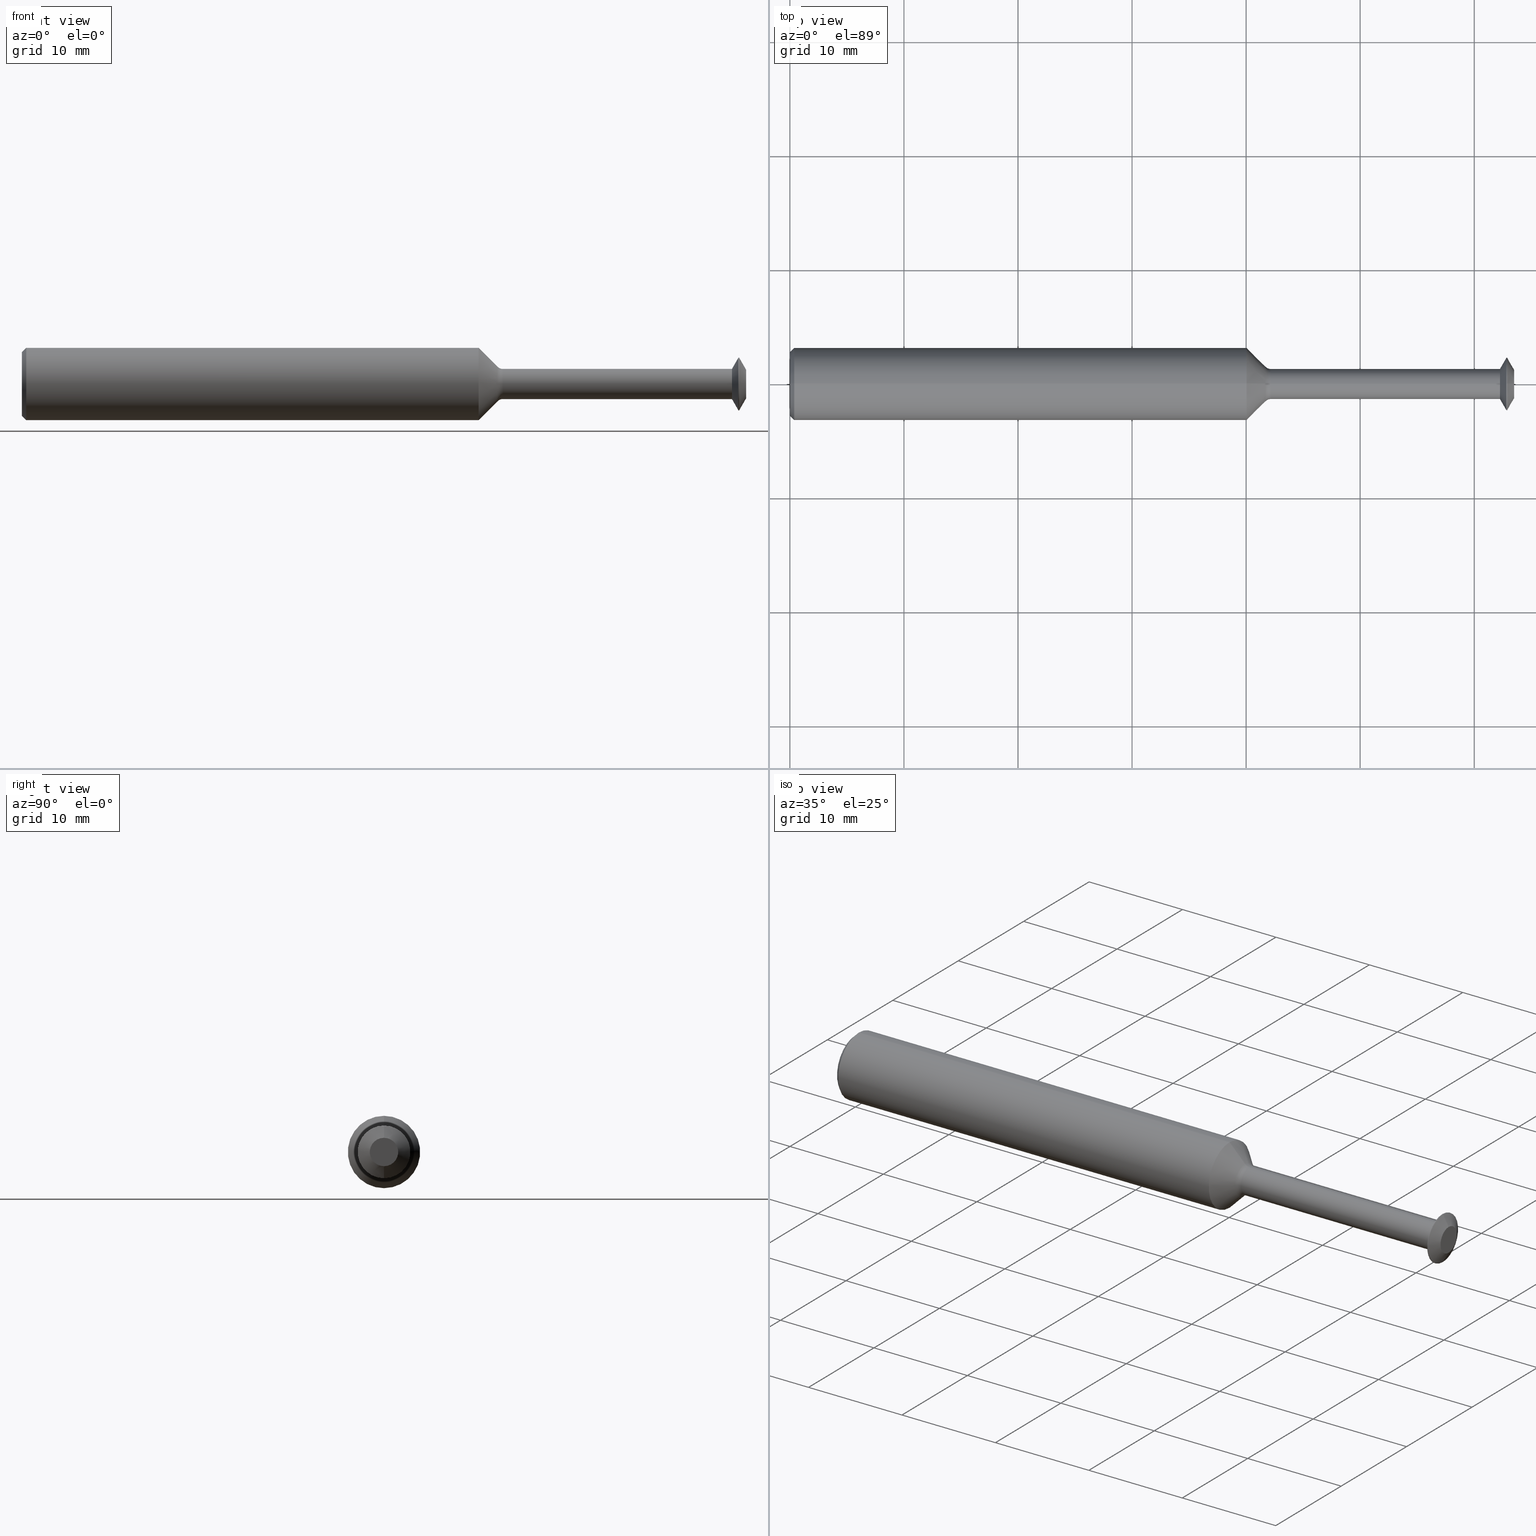
[diagram: canonical four-view strip — front | top / right | iso, engineering-drawing reading convention]
A machine part, canonical four-view strip (front | top / right | iso — engineering-drawing reading convention). The complete STEP part file that produces these views, byte-faithful:
ISO-10303-21;
HEADER;
FILE_DESCRIPTION (( 'STEP AP214' ),
    '1' );
FILE_NAME ('SPTM182XL.STEP',
    '2019-05-03T19:03:41',
    ( '' ),
    ( '' ),
    'SwSTEP 2.0',
    'SolidWorks 2018',
    '' );
FILE_SCHEMA (( 'AUTOMOTIVE_DESIGN' ));
ENDSEC;

DATA;
#1 = DIMENSIONAL_EXPONENTS ( 1.000000000000000000, 0.0000000000000000000, 0.0000000000000000000, 0.0000000000000000000, 0.0000000000000000000, 0.0000000000000000000, 0.0000000000000000000 ) ;
#2 = DIRECTION ( 'NONE',  ( 0.0000000000000000000, 0.0000000000000000000, 1.000000000000000000 ) ) ;
#3 = ORIENTED_EDGE ( 'NONE', *, *, #274, .T. ) ;
#4 = CIRCLE ( 'NONE', #393, 0.1248500000000000026 ) ;
#5 = TOROIDAL_SURFACE ( 'NONE', #399, 0.07699999999999998512, 0.02499999999999983485 ) ;
#6 = DIRECTION ( 'NONE',  ( -1.000000000000000000, -0.0000000000000000000, -0.0000000000000000000 ) ) ;
#7 = EDGE_CURVE ( 'NONE', #306, #409, #110, .T. ) ;
#8 = ORIENTED_EDGE ( 'NONE', *, *, #448, .F. ) ;
#9 = CARTESIAN_POINT ( 'NONE',  ( 0.0000000000000000000, 0.0000000000000000000, 0.0000000000000000000 ) ) ;
#10 = ADVANCED_FACE ( 'NONE', ( #263 ), #184, .T. ) ;
#11 = CARTESIAN_POINT ( 'NONE',  ( 1.660003014481508332, 6.368163355566256473E-18, -0.05200000000000015721 ) ) ;
#12 = ORIENTED_EDGE ( 'NONE', *, *, #367, .T. ) ;
#13 = EDGE_LOOP ( 'NONE', ( #145, #32, #345, #467 ) ) ;
#14 = CARTESIAN_POINT ( 'NONE',  ( 1.642325344951844901, 7.264890212845911207E-18, -0.05932233047033651924 ) ) ;
#15 = CIRCLE ( 'NONE', #349, 0.05200000000000015721 ) ;
#16 = ORIENTED_EDGE ( 'NONE', *, *, #322, .T. ) ;
#17 = DIRECTION ( 'NONE',  ( 0.7071067811865514585, 0.0000000000000000000, -0.7071067811865435759 ) ) ;
#18 =( LENGTH_UNIT ( ) NAMED_UNIT ( * ) SI_UNIT ( $, .METRE. ) );
#19 = SURFACE_STYLE_FILL_AREA ( #112 ) ;
#20 = DIRECTION ( 'NONE',  ( -1.000000000000000000, -0.0000000000000000000, -0.0000000000000000000 ) ) ;
#21 = DIRECTION ( 'NONE',  ( -1.000000000000000000, -0.0000000000000000000, -0.0000000000000000000 ) ) ;
#22 = CARTESIAN_POINT ( 'NONE',  ( 2.500000000000000000, 0.0000000000000000000, 0.04899999999999953004 ) ) ;
#23 = ORIENTED_EDGE ( 'NONE', *, *, #375, .T. ) ;
#24 = CARTESIAN_POINT ( 'NONE',  ( 2.500000000000000000, 8.572527594031414950E-18, -0.04899999999999953004 ) ) ;
#25 = CIRCLE ( 'NONE', #489, 0.1248500000000000026 ) ;
#26 = DIRECTION ( 'NONE',  ( -1.000000000000000000, -0.0000000000000000000, -0.0000000000000000000 ) ) ;
#27 = CIRCLE ( 'NONE', #116, 0.05200000000000000455 ) ;
#28 = ORIENTED_EDGE ( 'NONE', *, *, #475, .T. ) ;
#29 = LINE ( 'NONE', #451, #437 ) ;
#30 = CARTESIAN_POINT ( 'NONE',  ( 0.0000000000000000000, 0.0000000000000000000, 0.0000000000000000000 ) ) ;
#31 = DIRECTION ( 'NONE',  ( 0.0000000000000000000, 0.0000000000000000000, 1.000000000000000000 ) ) ;
#32 = ORIENTED_EDGE ( 'NONE', *, *, #370, .T. ) ;
#33 = LENGTH_MEASURE_WITH_UNIT ( LENGTH_MEASURE( 0.02539999999999999897 ), #365 );
#34 = FACE_OUTER_BOUND ( 'NONE', #68, .T. ) ;
#35 = AXIS2_PLACEMENT_3D ( 'NONE', #358, #195, #371 ) ;
#36 = VECTOR ( 'NONE', #207, 39.37007874015748143 ) ;
#37 = VERTEX_POINT ( 'NONE', #400 ) ;
#38 = CARTESIAN_POINT ( 'NONE',  ( 2.473397675422181141, 1.114428587224085715E-17, -0.09099999999999953959 ) ) ;
#39 = ORIENTED_EDGE ( 'NONE', *, *, #343, .T. ) ;
#40 = DIMENSIONAL_EXPONENTS ( 1.000000000000000000, 0.0000000000000000000, 0.0000000000000000000, 0.0000000000000000000, 0.0000000000000000000, 0.0000000000000000000, 0.0000000000000000000 ) ;
#41 = VERTEX_POINT ( 'NONE', #324 ) ;
#42 = ORIENTED_EDGE ( 'NONE', *, *, #456, .F. ) ;
#43 = CARTESIAN_POINT ( 'NONE',  ( 1.660003014481508332, 0.0000000000000000000, 0.0000000000000000000 ) ) ;
#44 = ADVANCED_FACE ( 'NONE', ( #74 ), #197, .T. ) ;
#45 = DIRECTION ( 'NONE',  ( -0.4977310399126123608, 1.062174661273176127E-16, -0.8673314314075728504 ) ) ;
#46 = EDGE_LOOP ( 'NONE', ( #84, #351, #98, #23 ) ) ;
#47 = VERTEX_POINT ( 'NONE', #483 ) ;
#48 = CARTESIAN_POINT ( 'NONE',  ( 1.660003014481508332, 0.0000000000000000000, 0.07699999999999998512 ) ) ;
#49 = EDGE_LOOP ( 'NONE', ( #132, #455, #179, #275 ) ) ;
#50 = DIRECTION ( 'NONE',  ( -0.7071067811865482389, 8.659560562354925463E-17, -0.7071067811865469066 ) ) ;
#51 = CARTESIAN_POINT ( 'NONE',  ( 0.0000000000000000000, 0.0000000000000000000, 0.0000000000000000000 ) ) ;
#52 = PRODUCT_RELATED_PRODUCT_CATEGORY ( 'part', '', ( #154 ) ) ;
#53 = TOROIDAL_SURFACE ( 'NONE', #78, 0.07699999999999998512, 0.02499999999999983485 ) ;
#54 = CARTESIAN_POINT ( 'NONE',  ( 1.642325344951844901, 7.264890212845898881E-18, -0.05932233047033641515 ) ) ;
#55 = ORIENTED_EDGE ( 'NONE', *, *, #95, .T. ) ;
#56 = CARTESIAN_POINT ( 'NONE',  ( 1.660003014481508332, 0.0000000000000000000, 0.0000000000000000000 ) ) ;
#57 = EDGE_LOOP ( 'NONE', ( #55, #283, #439, #261 ) ) ;
#58 = ORIENTED_EDGE ( 'NONE', *, *, #217, .T. ) ;
#59 = EDGE_LOOP ( 'NONE', ( #198, #383 ) ) ;
#60 = DIRECTION ( 'NONE',  ( -1.000000000000000000, -0.0000000000000000000, -0.0000000000000000000 ) ) ;
#61 =( GEOMETRIC_REPRESENTATION_CONTEXT ( 3 ) GLOBAL_UNCERTAINTY_ASSIGNED_CONTEXT ( ( #182 ) ) GLOBAL_UNIT_ASSIGNED_CONTEXT ( ( #298, #254, #79 ) ) REPRESENTATION_CONTEXT ( 'NONE', 'WORKASPACE' ) );
#62 = DIRECTION ( 'NONE',  ( 0.0000000000000000000, 0.0000000000000000000, 1.000000000000000000 ) ) ;
#63 = FILL_AREA_STYLE_COLOUR ( '', #175 ) ;
#64 = ADVANCED_FACE ( 'NONE', ( #299 ), #499, .T. ) ;
#65 = VERTEX_POINT ( 'NONE', #490 ) ;
#66 = AXIS2_PLACEMENT_3D ( 'NONE', #30, #425, #267 ) ;
#67 = FACE_OUTER_BOUND ( 'NONE', #59, .T. ) ;
#68 = EDGE_LOOP ( 'NONE', ( #191, #73, #491, #39 ) ) ;
#69 = ORIENTED_EDGE ( 'NONE', *, *, #362, .F. ) ;
#70 = VECTOR ( 'NONE', #266, 39.37007874015748143 ) ;
#71 = CARTESIAN_POINT ( 'NONE',  ( 0.0000000000000000000, 1.437123018799418210E-17, 0.1098499999999999199 ) ) ;
#72 = VECTOR ( 'NONE', #118, 39.37007874015748143 ) ;
#73 = ORIENTED_EDGE ( 'NONE', *, *, #466, .F. ) ;
#74 = FACE_OUTER_BOUND ( 'NONE', #332, .T. ) ;
#75 = ORIENTED_EDGE ( 'NONE', *, *, #107, .T. ) ;
#76 = SURFACE_STYLE_FILL_AREA ( #386 ) ;
#77 = CARTESIAN_POINT ( 'NONE',  ( 2.500000000000000000, 0.0000000000000000000, 0.04899999999999953004 ) ) ;
#78 = AXIS2_PLACEMENT_3D ( 'NONE', #56, #340, #211 ) ;
#79 =( NAMED_UNIT ( * ) SI_UNIT ( $, .STERADIAN. ) SOLID_ANGLE_UNIT ( ) );
#80 = FILL_AREA_STYLE_COLOUR ( '', #222 ) ;
#81 = DIRECTION ( 'NONE',  ( -1.000000000000000000, -0.0000000000000000000, -0.0000000000000000000 ) ) ;
#82 = MECHANICAL_DESIGN_GEOMETRIC_PRESENTATION_REPRESENTATION (  '', ( #159 ), #61 ) ;
#83 = CARTESIAN_POINT ( 'NONE',  ( 1.576797675422181300, 0.0000000000000000000, 0.0000000000000000000 ) ) ;
#84 = ORIENTED_EDGE ( 'NONE', *, *, #370, .F. ) ;
#85 = CARTESIAN_POINT ( 'NONE',  ( 0.0000000000000000000, 0.0000000000000000000, 0.0000000000000000000 ) ) ;
#86 = ORIENTED_EDGE ( 'NONE', *, *, #274, .F. ) ;
#87 = DIRECTION ( 'NONE',  ( -1.000000000000000000, -0.0000000000000000000, -0.0000000000000000000 ) ) ;
#88 = CIRCLE ( 'NONE', #189, 0.1098499999999999199 ) ;
#89 = DIRECTION ( 'NONE',  ( 0.0000000000000000000, 0.0000000000000000000, 1.000000000000000000 ) ) ;
#90 = PRESENTATION_STYLE_ASSIGNMENT (( #407 ) ) ;
#91 = CARTESIAN_POINT ( 'NONE',  ( 0.0000000000000000000, 0.0000000000000000000, 0.0000000000000000000 ) ) ;
#92 = AXIS2_PLACEMENT_3D ( 'NONE', #249, #311, #313 ) ;
#93 = DIRECTION ( 'NONE',  ( 0.0000000000000000000, 0.0000000000000000000, 1.000000000000000000 ) ) ;
#94 = CARTESIAN_POINT ( 'NONE',  ( 2.451016945457063834, 0.0000000000000000000, 0.0000000000000000000 ) ) ;
#95 = EDGE_CURVE ( 'NONE', #390, #404, #458, .T. ) ;
#96 = VERTEX_POINT ( 'NONE', #54 ) ;
#97 = VECTOR ( 'NONE', #310, 39.37007874015748854 ) ;
#98 = ORIENTED_EDGE ( 'NONE', *, *, #473, .T. ) ;
#99 = DIRECTION ( 'NONE',  ( -1.000000000000000000, -0.0000000000000000000, -0.0000000000000000000 ) ) ;
#100 = LINE ( 'NONE', #229, #72 ) ;
#101 = CARTESIAN_POINT ( 'NONE',  ( 1.660003014481508332, 9.429780353434618845E-18, -0.07699999999999998512 ) ) ;
#102 = AXIS2_PLACEMENT_3D ( 'NONE', #109, #87, #139 ) ;
#103 = VECTOR ( 'NONE', #170, 39.37007874015748143 ) ;
#104 = DIRECTION ( 'NONE',  ( 0.0000000000000000000, 0.0000000000000000000, 1.000000000000000000 ) ) ;
#105 = CIRCLE ( 'NONE', #155, 0.05200000000000015721 ) ;
#106 = LINE ( 'NONE', #302, #344 ) ;
#107 = EDGE_CURVE ( 'NONE', #476, #409, #224, .T. ) ;
#108 = LINE ( 'NONE', #269, #70 ) ;
#109 = CARTESIAN_POINT ( 'NONE',  ( 0.0000000000000000000, 0.0000000000000000000, 0.0000000000000000000 ) ) ;
#110 = LINE ( 'NONE', #487, #103 ) ;
#111 = FACE_OUTER_BOUND ( 'NONE', #328, .T. ) ;
#112 = FILL_AREA_STYLE ('',( #80 ) ) ;
#113 = ADVANCED_FACE ( 'NONE', ( #34 ), #5, .F. ) ;
#114 = EDGE_CURVE ( 'NONE', #243, #476, #29, .T. ) ;
#115 = DIRECTION ( 'NONE',  ( 0.0000000000000000000, 0.0000000000000000000, 1.000000000000000000 ) ) ;
#116 = AXIS2_PLACEMENT_3D ( 'NONE', #94, #99, #104 ) ;
#117 = CARTESIAN_POINT ( 'NONE',  ( 1.642325344951844901, 0.0000000000000000000, 0.05932233047033641515 ) ) ;
#118 = DIRECTION ( 'NONE',  ( -1.000000000000000000, -0.0000000000000000000, -0.0000000000000000000 ) ) ;
#119 = CARTESIAN_POINT ( 'NONE',  ( 0.0000000000000000000, 0.0000000000000000000, -0.1098499999999999199 ) ) ;
#120 = DIRECTION ( 'NONE',  ( 0.0000000000000000000, 0.0000000000000000000, 1.000000000000000000 ) ) ;
#121 = ADVANCED_FACE ( 'NONE', ( #238 ), #282, .T. ) ;
#122 = DIRECTION ( 'NONE',  ( -1.000000000000000000, -0.0000000000000000000, -0.0000000000000000000 ) ) ;
#123 = ORIENTED_EDGE ( 'NONE', *, *, #7, .T. ) ;
#124 = CARTESIAN_POINT ( 'NONE',  ( 0.0000000000000000000, 0.0000000000000000000, 0.0000000000000000000 ) ) ;
#125 = DIRECTION ( 'NONE',  ( -1.000000000000000000, -0.0000000000000000000, -0.0000000000000000000 ) ) ;
#126 = FACE_OUTER_BOUND ( 'NONE', #57, .T. ) ;
#127 = DIRECTION ( 'NONE',  ( -1.000000000000000000, -0.0000000000000000000, -0.0000000000000000000 ) ) ;
#128 = EDGE_LOOP ( 'NONE', ( #401, #86 ) ) ;
#129 = ORIENTED_EDGE ( 'NONE', *, *, #343, .F. ) ;
#130 = CONICAL_SURFACE ( 'NONE', #158, 0.1098499999999999199, 0.7853981633974426169 ) ;
#131 = DIRECTION ( 'NONE',  ( -1.000000000000000000, -0.0000000000000000000, -0.0000000000000000000 ) ) ;
#132 = ORIENTED_EDGE ( 'NONE', *, *, #443, .F. ) ;
#133 = VECTOR ( 'NONE', #482, 39.37007874015748143 ) ;
#134 = EDGE_LOOP ( 'NONE', ( #415, #28, #75, #245 ) ) ;
#135 = AXIS2_PLACEMENT_3D ( 'NONE', #281, #284, #286 ) ;
#136 = EDGE_CURVE ( 'NONE', #232, #65, #105, .T. ) ;
#137 = LINE ( 'NONE', #14, #204 ) ;
#138 = DIRECTION ( 'NONE',  ( 0.0000000000000000000, 0.0000000000000000000, -1.000000000000000000 ) ) ;
#139 = DIRECTION ( 'NONE',  ( 0.0000000000000000000, 0.0000000000000000000, 1.000000000000000000 ) ) ;
#140 = AXIS2_PLACEMENT_3D ( 'NONE', #48, #176, #255 ) ;
#141 = FACE_OUTER_BOUND ( 'NONE', #446, .T. ) ;
#142 = CARTESIAN_POINT ( 'NONE',  ( 2.475897675422181088, 0.0000000000000000000, 0.0000000000000000000 ) ) ;
#143 = CARTESIAN_POINT ( 'NONE',  ( 0.01500000000000024925, 0.0000000000000000000, 0.0000000000000000000 ) ) ;
#144 = ORIENTED_EDGE ( 'NONE', *, *, #357, .T. ) ;
#145 = ORIENTED_EDGE ( 'NONE', *, *, #448, .T. ) ;
#146 = PLANE ( 'NONE',  #196 ) ;
#147 = EDGE_CURVE ( 'NONE', #279, #65, #485, .T. ) ;
#148 = LINE ( 'NONE', #119, #428 ) ;
#149 = DIRECTION ( 'NONE',  ( -1.000000000000000000, -0.0000000000000000000, -0.0000000000000000000 ) ) ;
#150 = EDGE_LOOP ( 'NONE', ( #463, #16, #8, #69 ) ) ;
#151 = AXIS2_PLACEMENT_3D ( 'NONE', #178, #160, #321 ) ;
#152 = DIRECTION ( 'NONE',  ( 0.0000000000000000000, 0.0000000000000000000, -1.000000000000000000 ) ) ;
#153 = DIRECTION ( 'NONE',  ( 0.0000000000000000000, 0.0000000000000000000, 1.000000000000000000 ) ) ;
#154 = PRODUCT ( 'SPTM182XL', 'SPTM182XL', '', ( #421 ) ) ;
#155 = AXIS2_PLACEMENT_3D ( 'NONE', #43, #20, #230 ) ;
#156 = ORIENTED_EDGE ( 'NONE', *, *, #107, .F. ) ;
#157 = DIRECTION ( 'NONE',  ( -1.000000000000000000, -0.0000000000000000000, -0.0000000000000000000 ) ) ;
#158 = AXIS2_PLACEMENT_3D ( 'NONE', #319, #334, #314 ) ;
#159 = STYLED_ITEM ( 'NONE', ( #90 ), #329 ) ;
#160 = DIRECTION ( 'NONE',  ( -1.000000000000000000, -0.0000000000000000000, -0.0000000000000000000 ) ) ;
#161 = ORIENTED_EDGE ( 'NONE', *, *, #468, .F. ) ;
#162 = ADVANCED_FACE ( 'NONE', ( #325 ), #470, .T. ) ;
#163 = ORIENTED_EDGE ( 'NONE', *, *, #475, .F. ) ;
#164 = DIRECTION ( 'NONE',  ( 0.7071067811865514585, 8.659560562354882322E-17, 0.7071067811865435759 ) ) ;
#165 = DIRECTION ( 'NONE',  ( -0.0000000000000000000, 1.000000000000000000, 1.224646799147353207E-16 ) ) ;
#166 = CIRCLE ( 'NONE', #187, 0.05200000000000000455 ) ;
#167 = ADVANCED_FACE ( 'NONE', ( #67 ), #146, .F. ) ;
#168 = CONICAL_SURFACE ( 'NONE', #199, 0.05932233047033651924, 0.7853981633974473908 ) ;
#169 = DIRECTION ( 'NONE',  ( 1.000000000000000000, 0.0000000000000000000, 0.0000000000000000000 ) ) ;
#170 = DIRECTION ( 'NONE',  ( -1.000000000000000000, -0.0000000000000000000, -0.0000000000000000000 ) ) ;
#171 = DIRECTION ( 'NONE',  ( 0.0000000000000000000, 0.0000000000000000000, 1.000000000000000000 ) ) ;
#172 = CARTESIAN_POINT ( 'NONE',  ( 2.500000000000000000, 0.04899999999999953004, 0.0000000000000000000 ) ) ;
#173 = ADVANCED_FACE ( 'NONE', ( #111 ), #53, .F. ) ;
#174 = CARTESIAN_POINT ( 'NONE',  ( 2.473397675422181141, 0.0000000000000000000, 0.0000000000000000000 ) ) ;
#175 = COLOUR_RGB ( '',0.7529411764705882248, 0.7529411764705882248, 0.7529411764705882248 ) ;
#176 = DIRECTION ( 'NONE',  ( 0.0000000000000000000, -1.000000000000000000, 0.0000000000000000000 ) ) ;
#177 = CARTESIAN_POINT ( 'NONE',  ( 0.0000000000000000000, 1.345274508863366152E-17, 0.1098499999999999199 ) ) ;
#178 = CARTESIAN_POINT ( 'NONE',  ( 2.500000000000000000, 0.0000000000000000000, 0.0000000000000000000 ) ) ;
#179 = ORIENTED_EDGE ( 'NONE', *, *, #333, .T. ) ;
#180 = CARTESIAN_POINT ( 'NONE',  ( 0.0000000000000000000, 0.0000000000000000000, 0.0000000000000000000 ) ) ;
#181 = AXIS2_PLACEMENT_3D ( 'NONE', #469, #26, #2 ) ;
#182 = UNCERTAINTY_MEASURE_WITH_UNIT (LENGTH_MEASURE( 1.000000000000000082E-05 ), #298, 'distance_accuracy_value', 'NONE');
#183 = DIRECTION ( 'NONE',  ( -1.000000000000000000, -0.0000000000000000000, -0.0000000000000000000 ) ) ;
#184 = CONICAL_SURFACE ( 'NONE', #348, 0.04899999999999953004, 1.049815545074588963 ) ;
#185 = LINE ( 'NONE', #22, #97 ) ;
#186 = DIRECTION ( 'NONE',  ( 0.0000000000000000000, 0.0000000000000000000, -1.000000000000000000 ) ) ;
#187 = AXIS2_PLACEMENT_3D ( 'NONE', #212, #6, #31 ) ;
#188 = UNCERTAINTY_MEASURE_WITH_UNIT (LENGTH_MEASURE( 1.000000000000000082E-05 ), #327, 'distance_accuracy_value', 'NONE');
#189 = AXIS2_PLACEMENT_3D ( 'NONE', #124, #127, #138 ) ;
#190 = PRESENTATION_LAYER_ASSIGNMENT (  '', '', ( #159 ) ) ;
#191 = ORIENTED_EDGE ( 'NONE', *, *, #293, .F. ) ;
#192 = FACE_OUTER_BOUND ( 'NONE', #434, .T. ) ;
#193 = DIRECTION ( 'NONE',  ( 0.0000000000000000000, 0.0000000000000000000, -1.000000000000000000 ) ) ;
#194 = AXIS2_PLACEMENT_3D ( 'NONE', #142, #149, #153 ) ;
#195 = DIRECTION ( 'NONE',  ( 1.000000000000000000, 0.0000000000000000000, 0.0000000000000000000 ) ) ;
#196 = AXIS2_PLACEMENT_3D ( 'NONE', #51, #169, #152 ) ;
#197 = CONICAL_SURFACE ( 'NONE', #317, 0.09099999999999953959, 1.049815545074589851 ) ;
#198 = ORIENTED_EDGE ( 'NONE', *, *, #438, .T. ) ;
#199 = AXIS2_PLACEMENT_3D ( 'NONE', #341, #81, #308 ) ;
#200 = UNCERTAINTY_MEASURE_WITH_UNIT (LENGTH_MEASURE( 1.000000000000000082E-05 ), #405, 'distance_accuracy_value', 'NONE');
#201 = ADVANCED_FACE ( 'NONE', ( #408 ), #381, .T. ) ;
#202 = EDGE_LOOP ( 'NONE', ( #376, #223, #500, #378 ) ) ;
#203 = PRESENTATION_LAYER_ASSIGNMENT (  '', '', ( #338 ) ) ;
#204 = VECTOR ( 'NONE', #50, 39.37007874015748143 ) ;
#205 = DIRECTION ( 'NONE',  ( 1.000000000000000000, 0.0000000000000000000, 0.0000000000000000000 ) ) ;
#206 = ADVANCED_FACE ( 'NONE', ( #141 ), #300, .T. ) ;
#207 = DIRECTION ( 'NONE',  ( -1.000000000000000000, -0.0000000000000000000, -0.0000000000000000000 ) ) ;
#208 = ORIENTED_EDGE ( 'NONE', *, *, #7, .F. ) ;
#209 = CARTESIAN_POINT ( 'NONE',  ( 1.660003014481508332, 0.0000000000000000000, 0.0000000000000000000 ) ) ;
#210 = DIRECTION ( 'NONE',  ( 0.0000000000000000000, 0.0000000000000000000, 1.000000000000000000 ) ) ;
#211 = DIRECTION ( 'NONE',  ( 0.0000000000000000000, 0.0000000000000000000, 1.000000000000000000 ) ) ;
#212 = CARTESIAN_POINT ( 'NONE',  ( 2.451016945457063834, 0.0000000000000000000, 0.0000000000000000000 ) ) ;
#213 = AXIS2_PLACEMENT_3D ( 'NONE', #479, #402, #295 ) ;
#214 = DIRECTION ( 'NONE',  ( 0.0000000000000000000, 0.0000000000000000000, 1.000000000000000000 ) ) ;
#215 = EDGE_LOOP ( 'NONE', ( #363, #3, #296, #471 ) ) ;
#216 = LENGTH_MEASURE_WITH_UNIT ( LENGTH_MEASURE( 0.02539999999999999897 ), #398 );
#217 = EDGE_CURVE ( 'NONE', #96, #279, #270, .T. ) ;
#218 = PLANE ( 'NONE',  #233 ) ;
#219 = CONICAL_SURFACE ( 'NONE', #181, 0.05932233047033651924, 0.7853981633974473908 ) ;
#220 = VERTEX_POINT ( 'NONE', #350 ) ;
#221 = FACE_OUTER_BOUND ( 'NONE', #128, .T. ) ;
#222 = COLOUR_RGB ( '',0.7529411764705882248, 0.7529411764705882248, 0.7529411764705882248 ) ;
#223 = ORIENTED_EDGE ( 'NONE', *, *, #411, .T. ) ;
#224 = CIRCLE ( 'NONE', #385, 0.09099999999999953959 ) ;
#225 = DIRECTION ( 'NONE',  ( 0.0000000000000000000, 0.0000000000000000000, 1.000000000000000000 ) ) ;
#226 = DIRECTION ( 'NONE',  ( -1.000000000000000000, 0.0000000000000000000, -0.0000000000000000000 ) ) ;
#227 = DIRECTION ( 'NONE',  ( -0.0000000000000000000, 0.0000000000000000000, 1.000000000000000000 ) ) ;
#228 = LINE ( 'NONE', #268, #258 ) ;
#229 = CARTESIAN_POINT ( 'NONE',  ( 0.0000000000000000000, 6.368163355566246458E-18, -0.05200000000000008088 ) ) ;
#230 = DIRECTION ( 'NONE',  ( 0.0000000000000000000, 0.0000000000000000000, 1.000000000000000000 ) ) ;
#231 = ORIENTED_EDGE ( 'NONE', *, *, #315, .T. ) ;
#232 = VERTEX_POINT ( 'NONE', #11 ) ;
#233 = AXIS2_PLACEMENT_3D ( 'NONE', #172, #226, #227 ) ;
#234 = ORIENTED_EDGE ( 'NONE', *, *, #460, .T. ) ;
#235 = AXIS2_PLACEMENT_3D ( 'NONE', #272, #331, #89 ) ;
#236 = ORIENTED_EDGE ( 'NONE', *, *, #287, .T. ) ;
#237 = LINE ( 'NONE', #435, #133 ) ;
#238 = FACE_OUTER_BOUND ( 'NONE', #134, .T. ) ;
#239 = CIRCLE ( 'NONE', #213, 0.09099999999999953959 ) ;
#240 = DIRECTION ( 'NONE',  ( -1.000000000000000000, -0.0000000000000000000, -0.0000000000000000000 ) ) ;
#241 = AXIS2_PLACEMENT_3D ( 'NONE', #85, #374, #62 ) ;
#242 = MECHANICAL_DESIGN_GEOMETRIC_PRESENTATION_REPRESENTATION (  '', ( #338 ), #429 ) ;
#243 = VERTEX_POINT ( 'NONE', #251 ) ;
#244 = ADVANCED_FACE ( 'NONE', ( #256 ), #168, .T. ) ;
#245 = ORIENTED_EDGE ( 'NONE', *, *, #357, .F. ) ;
#246 = DIRECTION ( 'NONE',  ( 0.0000000000000000000, 0.0000000000000000000, 1.000000000000000000 ) ) ;
#247 = DIRECTION ( 'NONE',  ( 0.0000000000000000000, -1.224646799147353207E-16, 1.000000000000000000 ) ) ;
#248 = CARTESIAN_POINT ( 'NONE',  ( 0.0000000000000000000, 0.0000000000000000000, 0.0000000000000000000 ) ) ;
#249 = CARTESIAN_POINT ( 'NONE',  ( 2.500000000000000000, 0.0000000000000000000, 0.0000000000000000000 ) ) ;
#250 = CARTESIAN_POINT ( 'NONE',  ( 2.475897675422181088, 1.114428587224085561E-17, -0.09099999999999953959 ) ) ;
#251 = CARTESIAN_POINT ( 'NONE',  ( 2.475897675422181088, 0.0000000000000000000, 0.09099999999999953959 ) ) ;
#252 = CARTESIAN_POINT ( 'NONE',  ( 1.576797675422181300, 0.0000000000000000000, 0.0000000000000000000 ) ) ;
#253 = CARTESIAN_POINT ( 'NONE',  ( 1.576797675422181300, 0.0000000000000000000, 0.1248500000000000026 ) ) ;
#254 =( NAMED_UNIT ( * ) PLANE_ANGLE_UNIT ( ) SI_UNIT ( $, .RADIAN. ) );
#255 = DIRECTION ( 'NONE',  ( 0.0000000000000000000, 0.0000000000000000000, -1.000000000000000000 ) ) ;
#256 = FACE_OUTER_BOUND ( 'NONE', #394, .T. ) ;
#257 = DIRECTION ( 'NONE',  ( -1.000000000000000000, -0.0000000000000000000, -0.0000000000000000000 ) ) ;
#258 = VECTOR ( 'NONE', #294, 39.37007874015748143 ) ;
#259 = DIRECTION ( 'NONE',  ( -1.000000000000000000, -0.0000000000000000000, -0.0000000000000000000 ) ) ;
#260 = ORIENTED_EDGE ( 'NONE', *, *, #443, .T. ) ;
#261 = ORIENTED_EDGE ( 'NONE', *, *, #271, .F. ) ;
#262 = DIRECTION ( 'NONE',  ( 0.0000000000000000000, 0.0000000000000000000, 1.000000000000000000 ) ) ;
#263 = FACE_OUTER_BOUND ( 'NONE', #215, .T. ) ;
#264 = AXIS2_PLACEMENT_3D ( 'NONE', #461, #131, #445 ) ;
#265 = ADVANCED_FACE ( 'NONE', ( #369 ), #219, .T. ) ;
#266 = DIRECTION ( 'NONE',  ( -1.000000000000000000, -0.0000000000000000000, -0.0000000000000000000 ) ) ;
#267 = DIRECTION ( 'NONE',  ( 0.0000000000000000000, 0.0000000000000000000, -1.000000000000000000 ) ) ;
#268 = CARTESIAN_POINT ( 'NONE',  ( 0.0000000000000000000, 0.0000000000000000000, 0.1248500000000000026 ) ) ;
#269 = CARTESIAN_POINT ( 'NONE',  ( 0.0000000000000000000, 0.0000000000000000000, 0.05200000000000008088 ) ) ;
#270 = CIRCLE ( 'NONE', #326, 0.05932233047033651924 ) ;
#271 = EDGE_CURVE ( 'NONE', #390, #243, #185, .T. ) ;
#272 = CARTESIAN_POINT ( 'NONE',  ( 0.0000000000000000000, 0.0000000000000000000, 0.0000000000000000000 ) ) ;
#273 = DIRECTION ( 'NONE',  ( 1.000000000000000000, 0.0000000000000000000, 0.0000000000000000000 ) ) ;
#274 = EDGE_CURVE ( 'NONE', #404, #390, #488, .T. ) ;
#275 = ORIENTED_EDGE ( 'NONE', *, *, #375, .F. ) ;
#276 = CLOSED_SHELL ( 'NONE', ( #162, #64, #265, #173, #433, #121, #206, #477, #447, #10, #304, #44, #291, #113, #244, #201, #167, #481 ) ) ;
#277 = VECTOR ( 'NONE', #164, 39.37007874015748143 ) ;
#278 = CARTESIAN_POINT ( 'NONE',  ( 0.0000000000000000000, 0.0000000000000000000, 0.0000000000000000000 ) ) ;
#279 = VERTEX_POINT ( 'NONE', #117 ) ;
#280 = ORIENTED_EDGE ( 'NONE', *, *, #498, .F. ) ;
#281 = CARTESIAN_POINT ( 'NONE',  ( 1.642325344951844901, 0.0000000000000000000, 0.0000000000000000000 ) ) ;
#282 = CONICAL_SURFACE ( 'NONE', #35, 0.09099999999999953959, 1.049815545074589851 ) ;
#283 = ORIENTED_EDGE ( 'NONE', *, *, #305, .T. ) ;
#284 = DIRECTION ( 'NONE',  ( -1.000000000000000000, -0.0000000000000000000, -0.0000000000000000000 ) ) ;
#285 = CIRCLE ( 'NONE', #135, 0.05932233047033651924 ) ;
#286 = DIRECTION ( 'NONE',  ( 0.0000000000000000000, 0.0000000000000000000, 1.000000000000000000 ) ) ;
#287 = EDGE_CURVE ( 'NONE', #243, #306, #359, .T. ) ;
#288 = PRESENTATION_STYLE_ASSIGNMENT (( #397 ) ) ;
#289 = CARTESIAN_POINT ( 'NONE',  ( 2.473397675422181141, 0.0000000000000000000, 0.0000000000000000000 ) ) ;
#290 = CARTESIAN_POINT ( 'NONE',  ( 2.473397675422181141, 0.0000000000000000000, 0.09099999999999953959 ) ) ;
#291 = ADVANCED_FACE ( 'NONE', ( #459 ), #413, .T. ) ;
#292 = ORIENTED_EDGE ( 'NONE', *, *, #315, .F. ) ;
#293 = EDGE_CURVE ( 'NONE', #96, #232, #410, .T. ) ;
#294 = DIRECTION ( 'NONE',  ( -1.000000000000000000, -0.0000000000000000000, -0.0000000000000000000 ) ) ;
#295 = DIRECTION ( 'NONE',  ( 0.0000000000000000000, 0.0000000000000000000, 1.000000000000000000 ) ) ;
#296 = ORIENTED_EDGE ( 'NONE', *, *, #271, .T. ) ;
#297 = LINE ( 'NONE', #478, #392 ) ;
#298 =( CONVERSION_BASED_UNIT ( 'INCH', #380 ) LENGTH_UNIT ( ) NAMED_UNIT ( #40 ) );
#299 = FACE_OUTER_BOUND ( 'NONE', #13, .T. ) ;
#300 = CYLINDRICAL_SURFACE ( 'NONE', #354, 0.09099999999999953959 ) ;
#301 = EDGE_LOOP ( 'NONE', ( #432, #260, #280, #454 ) ) ;
#302 = CARTESIAN_POINT ( 'NONE',  ( 2.500000000000000000, 6.000769315821972746E-18, -0.04899999999999953004 ) ) ;
#303 = VERTEX_POINT ( 'NONE', #71 ) ;
#304 = ADVANCED_FACE ( 'NONE', ( #192 ), #450, .T. ) ;
#305 = EDGE_CURVE ( 'NONE', #404, #306, #106, .T. ) ;
#306 = VERTEX_POINT ( 'NONE', #250 ) ;
#307 = DIRECTION ( 'NONE',  ( -1.000000000000000000, -0.0000000000000000000, -0.0000000000000000000 ) ) ;
#308 = DIRECTION ( 'NONE',  ( 0.0000000000000000000, 0.0000000000000000000, 1.000000000000000000 ) ) ;
#309 = CARTESIAN_POINT ( 'NONE',  ( 2.473397675422181141, 1.114428587224085715E-17, 0.09099999999999953959 ) ) ;
#310 = DIRECTION ( 'NONE',  ( -0.4977310399126123608, 0.0000000000000000000, 0.8673314314075728504 ) ) ;
#311 = DIRECTION ( 'NONE',  ( -1.000000000000000000, -0.0000000000000000000, -0.0000000000000000000 ) ) ;
#312 = DIRECTION ( 'NONE',  ( 0.4977310399126116947, 1.062174661273176990E-16, 0.8673314314075734055 ) ) ;
#313 = DIRECTION ( 'NONE',  ( 0.0000000000000000000, 0.0000000000000000000, 1.000000000000000000 ) ) ;
#314 = DIRECTION ( 'NONE',  ( 0.0000000000000000000, 0.0000000000000000000, -1.000000000000000000 ) ) ;
#315 = EDGE_CURVE ( 'NONE', #409, #476, #239, .T. ) ;
#316 = DIRECTION ( 'NONE',  ( -1.000000000000000000, -0.0000000000000000000, -0.0000000000000000000 ) ) ;
#317 = AXIS2_PLACEMENT_3D ( 'NONE', #174, #205, #193 ) ;
#318 = CARTESIAN_POINT ( 'NONE',  ( 1.642325344951844901, 0.0000000000000000000, 0.0000000000000000000 ) ) ;
#319 = CARTESIAN_POINT ( 'NONE',  ( 0.0000000000000000000, 0.0000000000000000000, 0.0000000000000000000 ) ) ;
#320 = VERTEX_POINT ( 'NONE', #253 ) ;
#321 = DIRECTION ( 'NONE',  ( 0.0000000000000000000, 0.0000000000000000000, 1.000000000000000000 ) ) ;
#322 = EDGE_CURVE ( 'NONE', #96, #387, #137, .T. ) ;
#323 = ORIENTED_EDGE ( 'NONE', *, *, #322, .F. ) ;
#324 = CARTESIAN_POINT ( 'NONE',  ( 2.451016945457063834, 0.0000000000000000000, -0.05200000000000000455 ) ) ;
#325 = FACE_OUTER_BOUND ( 'NONE', #301, .T. ) ;
#326 = AXIS2_PLACEMENT_3D ( 'NONE', #318, #21, #210 ) ;
#327 =( CONVERSION_BASED_UNIT ( 'INCH', #33 ) LENGTH_UNIT ( ) NAMED_UNIT ( #1 ) );
#328 = EDGE_LOOP ( 'NONE', ( #352, #495, #372, #462 ) ) ;
#329 = MANIFOLD_SOLID_BREP ( '3C6F6B07-2A83-4170-A143-2761E20BF21A-GAAFaceID9', #276 ) ;
#330 = LINE ( 'NONE', #309, #501 ) ;
#331 = DIRECTION ( 'NONE',  ( -1.000000000000000000, -0.0000000000000000000, -0.0000000000000000000 ) ) ;
#332 = EDGE_LOOP ( 'NONE', ( #163, #364, #144, #231 ) ) ;
#333 = EDGE_CURVE ( 'NONE', #37, #220, #148, .T. ) ;
#334 = DIRECTION ( 'NONE',  ( 1.000000000000000000, 0.0000000000000000000, 0.0000000000000000000 ) ) ;
#335 = DIRECTION ( 'NONE',  ( -1.000000000000000000, -0.0000000000000000000, -0.0000000000000000000 ) ) ;
#336 = CIRCLE ( 'NONE', #194, 0.09099999999999953959 ) ;
#337 = DIRECTION ( 'NONE',  ( 0.0000000000000000000, 0.0000000000000000000, 1.000000000000000000 ) ) ;
#338 = STYLED_ITEM ( 'NONE', ( #288 ), #457 ) ;
#339 = AXIS2_PLACEMENT_3D ( 'NONE', #9, #157, #120 ) ;
#340 = DIRECTION ( 'NONE',  ( -1.000000000000000000, -0.0000000000000000000, -0.0000000000000000000 ) ) ;
#341 = CARTESIAN_POINT ( 'NONE',  ( 1.642325344951844901, 0.0000000000000000000, 0.0000000000000000000 ) ) ;
#342 = DIRECTION ( 'NONE',  ( -1.000000000000000000, -0.0000000000000000000, -0.0000000000000000000 ) ) ;
#343 = EDGE_CURVE ( 'NONE', #65, #232, #15, .T. ) ;
#344 = VECTOR ( 'NONE', #45, 39.37007874015748854 ) ;
#345 = ORIENTED_EDGE ( 'NONE', *, *, #498, .T. ) ;
#346 = ORIENTED_EDGE ( 'NONE', *, *, #362, .T. ) ;
#347 = CARTESIAN_POINT ( 'NONE',  ( 2.451016945457063834, 8.756224613903546798E-18, 0.05200000000000000455 ) ) ;
#348 = AXIS2_PLACEMENT_3D ( 'NONE', #464, #342, #337 ) ;
#349 = AXIS2_PLACEMENT_3D ( 'NONE', #444, #335, #115 ) ;
#350 = CARTESIAN_POINT ( 'NONE',  ( 0.01500000000000024925, 1.528971528735470422E-17, -0.1248500000000000026 ) ) ;
#351 = ORIENTED_EDGE ( 'NONE', *, *, #456, .T. ) ;
#352 = ORIENTED_EDGE ( 'NONE', *, *, #217, .F. ) ;
#353 = CARTESIAN_POINT ( 'NONE',  ( 0.01500000000000024925, 0.0000000000000000000, 0.0000000000000000000 ) ) ;
#354 = AXIS2_PLACEMENT_3D ( 'NONE', #248, #122, #214 ) ;
#355 = DIRECTION ( 'NONE',  ( 1.000000000000000000, 0.0000000000000000000, 0.0000000000000000000 ) ) ;
#356 = PRODUCT_DEFINITION ( 'UNKNOWN', '', #465, #494 ) ;
#357 = EDGE_CURVE ( 'NONE', #41, #409, #237, .T. ) ;
#358 = CARTESIAN_POINT ( 'NONE',  ( 2.473397675422181141, 0.0000000000000000000, 0.0000000000000000000 ) ) ;
#359 = CIRCLE ( 'NONE', #264, 0.09099999999999953959 ) ;
#360 = DIRECTION ( 'NONE',  ( 0.0000000000000000000, 0.0000000000000000000, -1.000000000000000000 ) ) ;
#361 = FACE_OUTER_BOUND ( 'NONE', #49, .T. ) ;
#362 = EDGE_CURVE ( 'NONE', #279, #320, #297, .T. ) ;
#363 = ORIENTED_EDGE ( 'NONE', *, *, #305, .F. ) ;
#364 = ORIENTED_EDGE ( 'NONE', *, *, #411, .F. ) ;
#365 =( LENGTH_UNIT ( ) NAMED_UNIT ( * ) SI_UNIT ( $, .METRE. ) );
#366 = SURFACE_SIDE_STYLE ('',( #19 ) ) ;
#367 = EDGE_CURVE ( 'NONE', #493, #41, #166, .T. ) ;
#368 =( NAMED_UNIT ( * ) PLANE_ANGLE_UNIT ( ) SI_UNIT ( $, .RADIAN. ) );
#369 = FACE_OUTER_BOUND ( 'NONE', #150, .T. ) ;
#370 = EDGE_CURVE ( 'NONE', #387, #220, #417, .T. ) ;
#371 = DIRECTION ( 'NONE',  ( 0.0000000000000000000, 0.0000000000000000000, -1.000000000000000000 ) ) ;
#372 = ORIENTED_EDGE ( 'NONE', *, *, #136, .T. ) ;
#373 =( GEOMETRIC_REPRESENTATION_CONTEXT ( 3 ) GLOBAL_UNCERTAINTY_ASSIGNED_CONTEXT ( ( #188 ) ) GLOBAL_UNIT_ASSIGNED_CONTEXT ( ( #327, #368, #377 ) ) REPRESENTATION_CONTEXT ( 'NONE', 'WORKASPACE' ) );
#374 = DIRECTION ( 'NONE',  ( -1.000000000000000000, -0.0000000000000000000, -0.0000000000000000000 ) ) ;
#375 = EDGE_CURVE ( 'NONE', #47, #220, #4, .T. ) ;
#376 = ORIENTED_EDGE ( 'NONE', *, *, #460, .F. ) ;
#377 =( NAMED_UNIT ( * ) SI_UNIT ( $, .STERADIAN. ) SOLID_ANGLE_UNIT ( ) );
#378 = ORIENTED_EDGE ( 'NONE', *, *, #136, .F. ) ;
#379 = APPLICATION_PROTOCOL_DEFINITION ( 'draft international standard', 'automotive_design', 1998, #384 ) ;
#380 = LENGTH_MEASURE_WITH_UNIT ( LENGTH_MEASURE( 0.02539999999999999897 ), #18 );
#381 = CYLINDRICAL_SURFACE ( 'NONE', #235, 0.1248500000000000026 ) ;
#382 = EDGE_LOOP ( 'NONE', ( #12, #234, #129, #161 ) ) ;
#383 = ORIENTED_EDGE ( 'NONE', *, *, #416, .T. ) ;
#384 = APPLICATION_CONTEXT ( 'automotive_design' ) ;
#385 = AXIS2_PLACEMENT_3D ( 'NONE', #289, #316, #171 ) ;
#386 = FILL_AREA_STYLE ('',( #63 ) ) ;
#387 = VERTEX_POINT ( 'NONE', #484 ) ;
#388 = SURFACE_SIDE_STYLE ('',( #76 ) ) ;
#389 = ORIENTED_EDGE ( 'NONE', *, *, #114, .T. ) ;
#390 = VERTEX_POINT ( 'NONE', #77 ) ;
#391 = DIRECTION ( 'NONE',  ( 0.0000000000000000000, 0.0000000000000000000, -1.000000000000000000 ) ) ;
#392 = VECTOR ( 'NONE', #442, 39.37007874015748143 ) ;
#393 = AXIS2_PLACEMENT_3D ( 'NONE', #143, #273, #391 ) ;
#394 = EDGE_LOOP ( 'NONE', ( #323, #58, #346, #42 ) ) ;
#395 = DIMENSIONAL_EXPONENTS ( 1.000000000000000000, 0.0000000000000000000, 0.0000000000000000000, 0.0000000000000000000, 0.0000000000000000000, 0.0000000000000000000, 0.0000000000000000000 ) ;
#396 = DIRECTION ( 'NONE',  ( 0.0000000000000000000, 0.0000000000000000000, 1.000000000000000000 ) ) ;
#397 = SURFACE_STYLE_USAGE ( .BOTH. , #388 ) ;
#398 =( LENGTH_UNIT ( ) NAMED_UNIT ( * ) SI_UNIT ( $, .METRE. ) );
#399 = AXIS2_PLACEMENT_3D ( 'NONE', #209, #60, #93 ) ;
#400 = CARTESIAN_POINT ( 'NONE',  ( 0.0000000000000000000, 0.0000000000000000000, -0.1098499999999999199 ) ) ;
#401 = ORIENTED_EDGE ( 'NONE', *, *, #95, .F. ) ;
#402 = DIRECTION ( 'NONE',  ( -1.000000000000000000, -0.0000000000000000000, -0.0000000000000000000 ) ) ;
#403 = CARTESIAN_POINT ( 'NONE',  ( 0.0000000000000000000, 1.528971528735470422E-17, -0.1248500000000000026 ) ) ;
#404 = VERTEX_POINT ( 'NONE', #24 ) ;
#405 =( CONVERSION_BASED_UNIT ( 'INCH', #216 ) LENGTH_UNIT ( ) NAMED_UNIT ( #395 ) );
#406 =( NAMED_UNIT ( * ) PLANE_ANGLE_UNIT ( ) SI_UNIT ( $, .RADIAN. ) );
#407 = SURFACE_STYLE_USAGE ( .BOTH. , #366 ) ;
#408 = FACE_OUTER_BOUND ( 'NONE', #46, .T. ) ;
#409 = VERTEX_POINT ( 'NONE', #38 ) ;
#410 = CIRCLE ( 'NONE', #452, 0.02499999999999983485 ) ;
#411 = EDGE_CURVE ( 'NONE', #41, #493, #27, .T. ) ;
#412 =( NAMED_UNIT ( * ) SI_UNIT ( $, .STERADIAN. ) SOLID_ANGLE_UNIT ( ) );
#413 = CYLINDRICAL_SURFACE ( 'NONE', #241, 0.05200000000000008088 ) ;
#414 = AXIS2_PLACEMENT_3D ( 'NONE', #353, #355, #360 ) ;
#415 = ORIENTED_EDGE ( 'NONE', *, *, #367, .F. ) ;
#416 = EDGE_CURVE ( 'NONE', #303, #37, #88, .T. ) ;
#417 = LINE ( 'NONE', #403, #36 ) ;
#418 = DIRECTION ( 'NONE',  ( 0.0000000000000000000, 0.0000000000000000000, 1.000000000000000000 ) ) ;
#419 = AXIS2_PLACEMENT_3D ( 'NONE', #492, #125, #396 ) ;
#420 = DIRECTION ( 'NONE',  ( 1.000000000000000000, 0.0000000000000000000, 0.0000000000000000000 ) ) ;
#421 = PRODUCT_CONTEXT ( 'NONE', #384, 'mechanical' ) ;
#422 = ORIENTED_EDGE ( 'NONE', *, *, #114, .F. ) ;
#423 = EDGE_CURVE ( 'NONE', #306, #243, #336, .T. ) ;
#424 = PRODUCT_DEFINITION_SHAPE ( 'NONE', 'NONE',  #356 ) ;
#425 = DIRECTION ( 'NONE',  ( 1.000000000000000000, 0.0000000000000000000, 0.0000000000000000000 ) ) ;
#426 = APPLICATION_CONTEXT ( 'automotive_design' ) ;
#427 = ORIENTED_EDGE ( 'NONE', *, *, #423, .T. ) ;
#428 = VECTOR ( 'NONE', #17, 39.37007874015748143 ) ;
#429 =( GEOMETRIC_REPRESENTATION_CONTEXT ( 3 ) GLOBAL_UNCERTAINTY_ASSIGNED_CONTEXT ( ( #200 ) ) GLOBAL_UNIT_ASSIGNED_CONTEXT ( ( #405, #406, #412 ) ) REPRESENTATION_CONTEXT ( 'NONE', 'WORKASPACE' ) );
#430 = AXIS2_PLACEMENT_3D ( 'NONE', #278, #418, #420 ) ;
#431 = APPLICATION_PROTOCOL_DEFINITION ( 'draft international standard', 'automotive_design', 1998, #426 ) ;
#432 = ORIENTED_EDGE ( 'NONE', *, *, #416, .F. ) ;
#433 = ADVANCED_FACE ( 'NONE', ( #436 ), #480, .T. ) ;
#434 = EDGE_LOOP ( 'NONE', ( #208, #427, #389, #292 ) ) ;
#435 = CARTESIAN_POINT ( 'NONE',  ( 2.473397675422181141, 0.0000000000000000000, -0.09099999999999953959 ) ) ;
#436 = FACE_OUTER_BOUND ( 'NONE', #382, .T. ) ;
#437 = VECTOR ( 'NONE', #307, 39.37007874015748143 ) ;
#438 = EDGE_CURVE ( 'NONE', #37, #303, #496, .T. ) ;
#439 = ORIENTED_EDGE ( 'NONE', *, *, #287, .F. ) ;
#440 = LINE ( 'NONE', #177, #277 ) ;
#441 = SHAPE_DEFINITION_REPRESENTATION ( #424, #457 ) ;
#442 = DIRECTION ( 'NONE',  ( -0.7071067811865482389, 0.0000000000000000000, 0.7071067811865469066 ) ) ;
#443 = EDGE_CURVE ( 'NONE', #303, #47, #440, .T. ) ;
#444 = CARTESIAN_POINT ( 'NONE',  ( 1.660003014481508332, 0.0000000000000000000, 0.0000000000000000000 ) ) ;
#445 = DIRECTION ( 'NONE',  ( 0.0000000000000000000, 0.0000000000000000000, 1.000000000000000000 ) ) ;
#446 = EDGE_LOOP ( 'NONE', ( #236, #123, #156, #422 ) ) ;
#447 = ADVANCED_FACE ( 'NONE', ( #221 ), #218, .F. ) ;
#448 = EDGE_CURVE ( 'NONE', #320, #387, #25, .T. ) ;
#449 = AXIS2_PLACEMENT_3D ( 'NONE', #180, #183, #186 ) ;
#450 = CYLINDRICAL_SURFACE ( 'NONE', #486, 0.09099999999999953959 ) ;
#451 = CARTESIAN_POINT ( 'NONE',  ( 0.0000000000000000000, 0.0000000000000000000, 0.09099999999999953959 ) ) ;
#452 = AXIS2_PLACEMENT_3D ( 'NONE', #101, #165, #247 ) ;
#453 = CIRCLE ( 'NONE', #414, 0.1248500000000000026 ) ;
#454 = ORIENTED_EDGE ( 'NONE', *, *, #333, .F. ) ;
#455 = ORIENTED_EDGE ( 'NONE', *, *, #438, .F. ) ;
#456 = EDGE_CURVE ( 'NONE', #387, #320, #497, .T. ) ;
#457 = ADVANCED_BREP_SHAPE_REPRESENTATION ( 'SPTM182XL', ( #329, #430 ), #373 ) ;
#458 = CIRCLE ( 'NONE', #419, 0.04899999999999953004 ) ;
#459 = FACE_OUTER_BOUND ( 'NONE', #202, .T. ) ;
#460 = EDGE_CURVE ( 'NONE', #41, #232, #100, .T. ) ;
#461 = CARTESIAN_POINT ( 'NONE',  ( 2.475897675422181088, 0.0000000000000000000, 0.0000000000000000000 ) ) ;
#462 = ORIENTED_EDGE ( 'NONE', *, *, #147, .F. ) ;
#463 = ORIENTED_EDGE ( 'NONE', *, *, #466, .T. ) ;
#464 = CARTESIAN_POINT ( 'NONE',  ( 2.500000000000000000, 0.0000000000000000000, 0.0000000000000000000 ) ) ;
#465 = PRODUCT_DEFINITION_FORMATION_WITH_SPECIFIED_SOURCE ( 'ANY', '', #154, .NOT_KNOWN. ) ;
#466 = EDGE_CURVE ( 'NONE', #279, #96, #285, .T. ) ;
#467 = ORIENTED_EDGE ( 'NONE', *, *, #473, .F. ) ;
#468 = EDGE_CURVE ( 'NONE', #493, #65, #108, .T. ) ;
#469 = CARTESIAN_POINT ( 'NONE',  ( 1.642325344951844901, 0.0000000000000000000, 0.0000000000000000000 ) ) ;
#470 = CONICAL_SURFACE ( 'NONE', #66, 0.1098499999999999199, 0.7853981633974426169 ) ;
#471 = ORIENTED_EDGE ( 'NONE', *, *, #423, .F. ) ;
#472 = CONICAL_SURFACE ( 'NONE', #92, 0.04899999999999953004, 1.049815545074588963 ) ;
#473 = EDGE_CURVE ( 'NONE', #320, #47, #228, .T. ) ;
#474 = AXIS2_PLACEMENT_3D ( 'NONE', #252, #259, #262 ) ;
#475 = EDGE_CURVE ( 'NONE', #493, #476, #330, .T. ) ;
#476 = VERTEX_POINT ( 'NONE', #290 ) ;
#477 = ADVANCED_FACE ( 'NONE', ( #126 ), #472, .T. ) ;
#478 = CARTESIAN_POINT ( 'NONE',  ( 1.642325344951844901, 0.0000000000000000000, 0.05932233047033651924 ) ) ;
#479 = CARTESIAN_POINT ( 'NONE',  ( 2.473397675422181141, 0.0000000000000000000, 0.0000000000000000000 ) ) ;
#480 = CYLINDRICAL_SURFACE ( 'NONE', #102, 0.05200000000000008088 ) ;
#481 = ADVANCED_FACE ( 'NONE', ( #361 ), #130, .T. ) ;
#482 = DIRECTION ( 'NONE',  ( 0.4977310399126116947, 0.0000000000000000000, -0.8673314314075734055 ) ) ;
#483 = CARTESIAN_POINT ( 'NONE',  ( 0.01500000000000024925, 0.0000000000000000000, 0.1248500000000000026 ) ) ;
#484 = CARTESIAN_POINT ( 'NONE',  ( 1.576797675422181300, 1.528971528735470422E-17, -0.1248500000000000026 ) ) ;
#485 = CIRCLE ( 'NONE', #140, 0.02499999999999983485 ) ;
#486 = AXIS2_PLACEMENT_3D ( 'NONE', #91, #257, #225 ) ;
#487 = CARTESIAN_POINT ( 'NONE',  ( 0.0000000000000000000, 1.114428587224085715E-17, -0.09099999999999953959 ) ) ;
#488 = CIRCLE ( 'NONE', #151, 0.04899999999999953004 ) ;
#489 = AXIS2_PLACEMENT_3D ( 'NONE', #83, #240, #246 ) ;
#490 = CARTESIAN_POINT ( 'NONE',  ( 1.660003014481508332, 0.0000000000000000000, 0.05200000000000015721 ) ) ;
#491 = ORIENTED_EDGE ( 'NONE', *, *, #147, .T. ) ;
#492 = CARTESIAN_POINT ( 'NONE',  ( 2.500000000000000000, 0.0000000000000000000, 0.0000000000000000000 ) ) ;
#493 = VERTEX_POINT ( 'NONE', #347 ) ;
#494 = PRODUCT_DEFINITION_CONTEXT ( 'detailed design', #426, 'design' ) ;
#495 = ORIENTED_EDGE ( 'NONE', *, *, #293, .T. ) ;
#496 = CIRCLE ( 'NONE', #449, 0.1098499999999999199 ) ;
#497 = CIRCLE ( 'NONE', #474, 0.1248500000000000026 ) ;
#498 = EDGE_CURVE ( 'NONE', #220, #47, #453, .T. ) ;
#499 = CYLINDRICAL_SURFACE ( 'NONE', #339, 0.1248500000000000026 ) ;
#500 = ORIENTED_EDGE ( 'NONE', *, *, #468, .T. ) ;
#501 = VECTOR ( 'NONE', #312, 39.37007874015748143 ) ;
ENDSEC;
END-ISO-10303-21;
